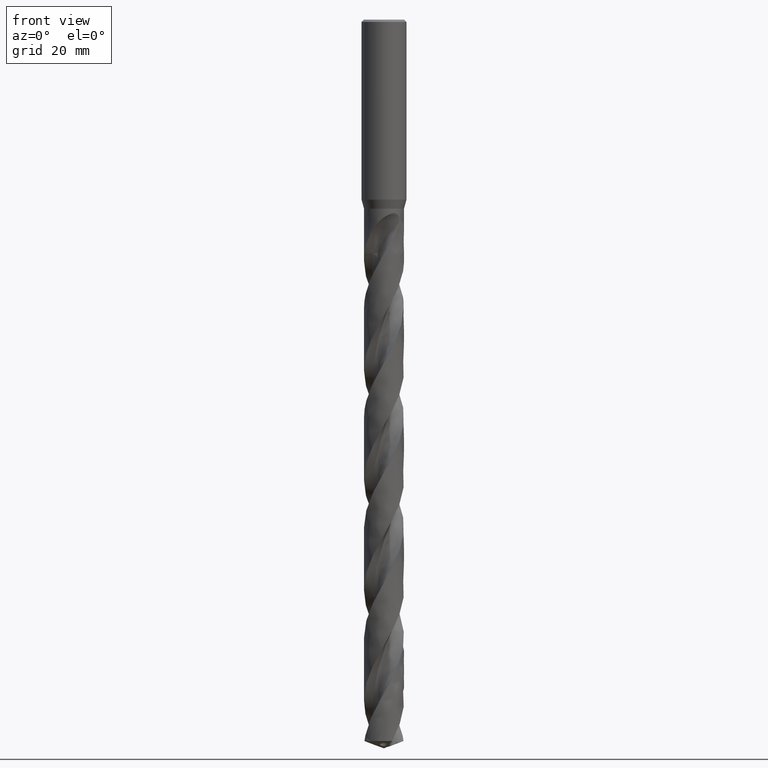
[diagram: clean part render]
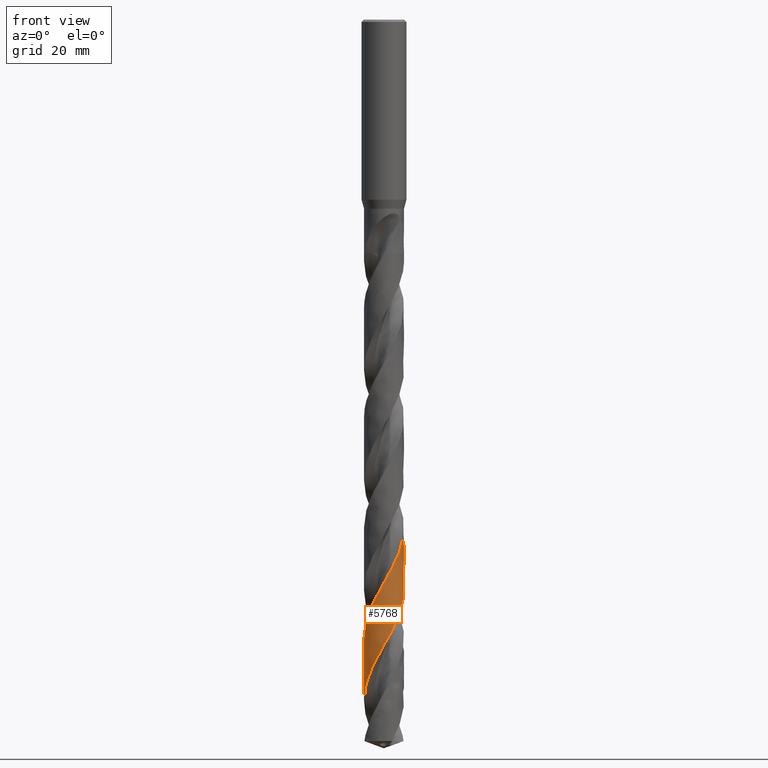
[diagram: same view with one face highlighted and labeled with its STEP entity id]
A machine part, front view. The second image highlights one B-rep face of the part: STEP entity #5768.
In plain terms, the highlighted face is a freeform B-spline surface patch.
Its self-contained STEP definition (entity closure, byte-faithful):
#1411 = VERTEX_POINT('', #1412);
#1412 = CARTESIAN_POINT('', (-4.45, 5.69042019987635E-15, -88.4816143044385));
#1572 = EDGE_CURVE('', #1411, #1573, #1575, .T.);
#1573 = VERTEX_POINT('', #1574);
#1574 = CARTESIAN_POINT('', (-4.45, 6.53931339208371E-15, -102.345092211675));
#1575 = LINE('', #1576, #1577);
#1576 = CARTESIAN_POINT('', (-4.45, 5.69042019987635E-15, -88.4816143044385));
#1577 = VECTOR('', #1578, 13.8634779072364);
#1578 = DIRECTION('', (0., 8.48893192207358E-16, -13.8634779072364));
#5116 = EDGE_CURVE('', #5117, #1573, #5119, .T.);
#5117 = VERTEX_POINT('', #5118);
#5118 = CARTESIAN_POINT('', (-4.45, 9.54006990221498E-15, -151.351165019288));
#5119 = B_SPLINE_CURVE_WITH_KNOTS('', 3, (#5120, #5121, #5122, #5123, #5124, #5125, #5126, #5127, #5128, #5129, #5130, #5131, #5132, #5133, #5134, #5135, #5136, #5137, #5138, #5139, #5140, #5141, #5142, #5143, #5144, #5145, #5146, #5147, #5148, #5149, #5150, #5151, #5152, #5153, #5154, #5155, #5156, #5157, #5158, #5159, #5160, #5161, #5162, #5163, #5164, #5165, #5166, #5167, #5168, #5169, #5170, #5171, #5172, #5173, #5174, #5175, #5176, #5177, #5178, #5179, #5180, #5181, #5182, #5183, #5184, #5185, #5186, #5187, #5188, #5189, #5190, #5191, #5192, #5193, #5194, #5195, #5196, #5197, #5198, #5199, #5200, #5201, #5202, #5203, #5204, #5205, #5206, #5207, #5208, #5209, #5210, #5211, #5212, #5213, #5214, #5215, #5216, #5217, #5218, #5219, #5220, #5221, #5222, #5223, #5224, #5225, #5226, #5227, #5228, #5229, #5230, #5231, #5232, #5233, #5234, #5235, #5236, #5237, #5238, #5239, #5240, #5241, #5242, #5243, #5244, #5245, #5246, #5247, #5248, #5249, #5250, #5251, #5252, #5253, #5254, #5255, #5256, #5257, #5258, #5259, #5260, #5261, #5262, #5263, #5264, #5265, #5266, #5267, #5268, #5269, #5270, #5271, #5272, #5273, #5274, #5275, #5276, #5277, #5278, #5279, #5280, #5281, #5282, #5283, #5284, #5285, #5286, #5287, #5288, #5289, #5290, #5291, #5292, #5293, #5294, #5295, #5296, #5297, #5298, #5299, #5300, #5301, #5302, #5303, #5304, #5305, #5306, #5307, #5308, #5309, #5310, #5311, #5312, #5313, #5314, #5315, #5316, #5317, #5318, #5319, #5320, #5321, #5322, #5323, #5324, #5325, #5326, #5327, #5328, #5329, #5330, #5331, #5332, #5333, #5334, #5335, #5336, #5337, #5338, #5339, #5340, #5341, #5342, #5343, #5344, #5345, #5346, #5347, #5348, #5349, #5350, #5351, #5352, #5353, #5354, #5355, #5356, #5357, #5358, #5359, #5360, #5361, #5362, #5363, #5364, #5365, #5366, #5367, #5368, #5369, #5370, #5371, #5372, #5373, #5374, #5375, #5376, #5377, #5378, #5379, #5380, #5381, #5382, #5383, #5384, #5385, #5386, #5387), .UNSPECIFIED., .F., .U., (4, 3, 3, 3, 3, 3, 3, 3, 3, 3, 3, 3, 3, 3, 3, 3, 3, 3, 3, 3, 3, 3, 3, 3, 3, 3, 3, 3, 3, 3, 3, 3, 3, 3, 3, 3, 3, 3, 3, 3, 3, 3, 3, 3, 3, 3, 3, 3, 3, 3, 3, 3, 3, 3, 3, 3, 3, 3, 3, 3, 3, 3, 3, 3, 3, 3, 3, 3, 3, 3, 3, 3, 3, 3, 3, 3, 3, 3, 3, 3, 3, 3, 3, 3, 3, 3, 3, 3, 3, 4), (0., 1.0001758650198, 1.99990602068301, 2.99921047164784, 3.66488423473307, 4.33044033311724, 4.99588058216347, 5.66120697438947, 6.32642073808869, 6.9915224120593, 7.65651292259589, 8.32139277899443, 8.98616164958446, 9.65081921177333, 10.3153652227679, 10.9797986680247, 11.6441179594377, 12.3083218784174, 12.9724086319969, 13.6363755331495, 14.0792142018382, 14.1667811579948, 15.1669450838889, 15.8329821929557, 16.4988929982433, 17.1646806407855, 17.8303481871134, 18.4958979016419, 19.1613314066931, 19.8266505835613, 20.4918568208398, 21.1569507119512, 21.8219329016632, 22.4868039734174, 23.1515637920836, 23.8162117673217, 24.4807475921783, 25.1451704139463, 25.8094786207991, 26.4736707400156, 27.1377450570706, 27.8016990410117, 28.0970419279581, 28.2283618762321, 28.2867524375815, 28.9529876526202, 29.619090366783, 30.2850645245678, 30.9509138330068, 31.6166411961645, 32.2822488889948, 32.9477393056637, 33.6131143296647, 34.2783750934024, 34.9435227320611, 35.6085582423516, 36.2734819535534, 36.9382937848347, 37.6029938316923, 38.2675816845759, 38.9320562571594, 39.5964165555141, 40.2606613361282, 40.9247886307735, 41.5887961300579, 42.2526815326236, 42.3110577901205, 42.3694410865438, 43.03568263834, 43.701791114521, 44.3677704618946, 45.0336243733474, 45.6993558166308, 46.3649671217279, 47.0304606345777, 47.6958382593048, 48.3611012041034, 49.0262505712747, 49.6912873336117, 50.3562118745197, 51.0210241379987, 51.6857241583959, 52.3503115433681, 53.0147852655961, 53.6791442728578, 54.3433872968076, 55.0075124186415, 55.6715173205421, 56.3353996340652, 56.4179484036911), .UNSPECIFIED.);
#5120 = CARTESIAN_POINT('', (-4.45, 9.73410482164021E-15, -151.351165019288));
#5121 = CARTESIAN_POINT('', (-4.45, -0.164892842870799, -151.061405556918));
#5122 = CARTESIAN_POINT('', (-4.44082083138796, -0.329854180480097, -150.771540395359));
#5123 = CARTESIAN_POINT('', (-4.42252422082763, -0.493740332761066, -150.481787468202));
#5124 = CARTESIAN_POINT('', (-4.4042357638039, -0.657553452294455, -150.192163663928));
#5125 = CARTESIAN_POINT('', (-4.37682409167601, -0.820416891737101, -149.902434276965));
#5126 = CARTESIAN_POINT('', (-4.34047719524564, -0.981202179753531, -149.612817032881));
#5127 = CARTESIAN_POINT('', (-4.30414577603629, -1.14191900224238, -149.323323113497));
#5128 = CARTESIAN_POINT('', (-4.25885919293747, -1.30068137937725, -149.033723638544));
#5129 = CARTESIAN_POINT('', (-4.20492899353757, -1.45639011233501, -148.744236294285));
#5130 = CARTESIAN_POINT('', (-4.16900408722518, -1.56011347523322, -148.551398036001));
#5131 = CARTESIAN_POINT('', (-4.12923166820765, -1.6625270201926, -148.358529291594));
#5132 = CARTESIAN_POINT('', (-4.08573378508768, -1.76331490023565, -148.165693957273));
#5133 = CARTESIAN_POINT('', (-4.04224359066704, -1.86408496498172, -147.972892708586));
#5134 = CARTESIAN_POINT('', (-3.99501458783162, -1.96326402499371, -147.780060538677));
#5135 = CARTESIAN_POINT('', (-3.9441909721067, -2.06054788237303, -147.587262365363));
#5136 = CARTESIAN_POINT('', (-3.8933762029422, -2.15781480613774, -147.394497751265));
#5137 = CARTESIAN_POINT('', (-3.83895158641131, -2.25321875971477, -147.201701984929));
#5138 = CARTESIAN_POINT('', (-3.7810832480169, -2.34646744523889, -147.008940137739));
#5139 = CARTESIAN_POINT('', (-3.72322481089464, -2.4397001759138, -146.8162112721));
#5140 = CARTESIAN_POINT('', (-3.66190443104252, -2.53080954403471, -146.623451828006));
#5141 = CARTESIAN_POINT('', (-3.59731041168429, -2.61951480278081, -146.430725736883));
#5142 = CARTESIAN_POINT('', (-3.53272732700311, -2.70820504522404, -146.238032271033));
#5143 = CARTESIAN_POINT('', (-3.46484959377854, -2.7945223962513, -146.045308192441));
#5144 = CARTESIAN_POINT('', (-3.39388516683803, -2.87820143046256, -145.852617831875));
#5145 = CARTESIAN_POINT('', (-3.32293269753248, -2.96186636460441, -145.659959939984));
#5146 = CARTESIAN_POINT('', (-3.24887137332084, -3.04292129036274, -145.467270871872));
#5147 = CARTESIAN_POINT('', (-3.17192706635946, -3.12111817874559, -145.274615849392));
#5148 = CARTESIAN_POINT('', (-3.09499561967754, -3.19930199749566, -145.081993026792));
#5149 = CARTESIAN_POINT('', (-3.0151569174595, -3.27465432799457, -144.889339396715));
#5150 = CARTESIAN_POINT('', (-2.9326555806266, -3.34694356770765, -144.69671929384));
#5151 = CARTESIAN_POINT('', (-2.85016797198105, -3.41922077852199, -144.504131242867));
#5152 = CARTESIAN_POINT('', (-2.76499043717336, -3.48846058122713, -144.311512749001));
#5153 = CARTESIAN_POINT('', (-2.67738454221484, -3.55444960761986, -144.118927667219));
#5154 = CARTESIAN_POINT('', (-2.58979327096763, -3.62042761872107, -143.926374732917));
#5155 = CARTESIAN_POINT('', (-2.49974515264558, -3.68317806539419, -143.733790850456));
#5156 = CARTESIAN_POINT('', (-2.40751514626182, -3.74250862664602, -143.541240930487));
#5157 = CARTESIAN_POINT('', (-2.31530058280117, -3.80182925363316, -143.348723250932));
#5158 = CARTESIAN_POINT('', (-2.22087493944769, -3.8577503835105, -143.156174552341));
#5159 = CARTESIAN_POINT('', (-2.12452671962623, -3.91010053804172, -142.96365961448));
#5160 = CARTESIAN_POINT('', (-2.02819467017519, -3.96244190651139, -142.771176986899));
#5161 = CARTESIAN_POINT('', (-1.92990827962041, -4.01123105700204, -142.578663897302));
#5162 = CARTESIAN_POINT('', (-1.82996944286759, -4.05631752186276, -142.386184069475));
#5163 = CARTESIAN_POINT('', (-1.73004753449701, -4.10139634964328, -142.19373684531));
#5164 = CARTESIAN_POINT('', (-1.62843964356374, -4.14278915794857, -142.001259004652));
#5165 = CARTESIAN_POINT('', (-1.52545679941362, -4.18036859058178, -141.808814876062));
#5166 = CARTESIAN_POINT('', (-1.42249164836367, -4.21794156683217, -141.616403810583));
#5167 = CARTESIAN_POINT('', (-1.31811845843253, -4.25171475604977, -141.423961647923));
#5168 = CARTESIAN_POINT('', (-1.2126555244362, -4.28158458739919, -141.231553405579));
#5169 = CARTESIAN_POINT('', (-1.10721090620382, -4.31144923125042, -141.039178578804));
#5170 = CARTESIAN_POINT('', (-1.00064217731966, -4.33742167017659, -140.846773099878));
#5171 = CARTESIAN_POINT('', (-0.893275944414921, -4.35942176063864, -140.654400995625));
#5172 = CARTESIAN_POINT('', (-0.785928650886001, -4.38141797029039, -140.462062825762));
#5173 = CARTESIAN_POINT('', (-0.677747474156408, -4.39945073787057, -140.269694239624));
#5174 = CARTESIAN_POINT('', (-0.569064184377701, -4.41346416707541, -140.077359082728));
#5175 = CARTESIAN_POINT('', (-0.460400509439933, -4.42747506717771, -139.885058637917));
#5176 = CARTESIAN_POINT('', (-0.351198891718741, -4.43747276854318, -139.692727231438));
#5177 = CARTESIAN_POINT('', (-0.241792357733118, -4.44342620685234, -139.500429733948));
#5178 = CARTESIAN_POINT('', (-0.168822690462158, -4.44739690582901, -139.372175196512));
#5179 = CARTESIAN_POINT('', (-0.0957486207120782, -4.44956996038297, -139.243911775192));
#5180 = CARTESIAN_POINT('', (-0.0226699500377496, -4.44994225505963, -139.115658375805));
#5181 = CARTESIAN_POINT('', (-0.00821936745906058, -4.45001587264079, -139.09029753766));
#5182 = CARTESIAN_POINT('', (0.00623165715873699, -4.45001910037915, -139.064936649373));
#5183 = CARTESIAN_POINT('', (0.0206823588499127, -4.44995193682272, -139.039575861185));
#5184 = CARTESIAN_POINT('', (0.185734008121838, -4.44918481450602, -138.749912424298));
#5185 = CARTESIAN_POINT('', (0.350811542510348, -4.43922039267221, -138.460142804947));
#5186 = CARTESIAN_POINT('', (0.514768353551297, -4.4201259645155, -138.170485923448));
#5187 = CARTESIAN_POINT('', (0.623951775998662, -4.40741045118861, -137.977595311239));
#5188 = CARTESIAN_POINT('', (0.732685141357909, -4.39064418163925, -137.78467401318));
#5189 = CARTESIAN_POINT('', (0.84063247814679, -4.36987837779094, -137.591786361513));
#5190 = CARTESIAN_POINT('', (0.9485593443697, -4.3491165118606, -137.398935288047));
#5191 = CARTESIAN_POINT('', (1.05573686582128, -4.32434967349328, -137.206053067571));
#5192 = CARTESIAN_POINT('', (1.16183564548822, -4.29565337671383, -137.013205014506));
#5193 = CARTESIAN_POINT('', (1.26791480178083, -4.26696238742401, -136.820392629425));
#5194 = CARTESIAN_POINT('', (1.37295027693605, -4.23433401627336, -136.627549002733));
#5195 = CARTESIAN_POINT('', (1.47661923559592, -4.1978679866175, -136.43473937694));
#5196 = CARTESIAN_POINT('', (1.58026949422493, -4.1614085347829, -136.241964530565));
#5197 = CARTESIAN_POINT('', (1.6825886870139, -4.12110046685803, -136.049158971006));
#5198 = CARTESIAN_POINT('', (1.78326074794299, -4.07706770913186, -135.85638692549));
#5199 = CARTESIAN_POINT('', (1.88391498861007, -4.03304274577558, -135.663649003129));
#5200 = CARTESIAN_POINT('', (1.98295720772899, -3.98527933476575, -135.470880254421));
#5201 = CARTESIAN_POINT('', (2.0800823179119, -3.93392393809415, -135.278145419782));
#5202 = CARTESIAN_POINT('', (2.1771904693943, -3.88257750842182, -135.085444237947));
#5203 = CARTESIAN_POINT('', (2.27241410301772, -3.82762350405206, -134.892711757306));
#5204 = CARTESIAN_POINT('', (2.3654610374627, -3.76922990546423, -134.700013417824));
#5205 = CARTESIAN_POINT('', (2.45849198550654, -3.71084633948516, -134.507348185858));
#5206 = CARTESIAN_POINT('', (2.54937774092065, -3.64900501308716, -134.314652050366));
#5207 = CARTESIAN_POINT('', (2.63783819461798, -3.58389587725627, -134.121989552091));
#5208 = CARTESIAN_POINT('', (2.72628363193265, -3.51879779386359, -133.929359758755));
#5209 = CARTESIAN_POINT('', (2.81233489021986, -3.45041069652976, -133.736699322209));
#5210 = CARTESIAN_POINT('', (2.89572641747841, -3.3789448819295, -133.544072523324));
#5211 = CARTESIAN_POINT('', (2.9791038608064, -3.30749113713542, -133.35147825703));
#5212 = CARTESIAN_POINT('', (3.05985036830031, -3.23293586412443, -133.158852847663));
#5213 = CARTESIAN_POINT('', (3.13771804322084, -3.15550716704088, -132.966261546767));
#5214 = CARTESIAN_POINT('', (3.21557264039644, -3.07809147397666, -132.773702591256));
#5215 = CARTESIAN_POINT('', (3.29057481709269, -2.99777800321842, -132.581112530672));
#5216 = CARTESIAN_POINT('', (3.36249400656139, -2.91481286806524, -132.388556316239));
#5217 = CARTESIAN_POINT('', (3.43440117839476, -2.83186159631551, -132.196032277786));
#5218 = CARTESIAN_POINT('', (3.5032507134464, -2.74623143279252, -132.00347762761));
#5219 = CARTESIAN_POINT('', (3.56882997303963, -2.65818596481396, -131.81095641707));
#5220 = CARTESIAN_POINT('', (3.63439825923447, -2.57015522951159, -131.618467421164));
#5221 = CARTESIAN_POINT('', (3.6967197668282, -2.47967997069496, -131.42594759977));
#5222 = CARTESIAN_POINT('', (3.75560264445402, -2.38703765721657, -131.233461671628));
#5223 = CARTESIAN_POINT('', (3.81447561524928, -2.29441093047134, -131.041008128544));
#5224 = CARTESIAN_POINT('', (3.86993041862501, -2.19958754590245, -130.848523380827));
#5225 = CARTESIAN_POINT('', (3.92179680586467, -2.10285753523856, -130.656072643352));
#5226 = CARTESIAN_POINT('', (3.97365444135102, -2.00614384645936, -130.463654379343));
#5227 = CARTESIAN_POINT('', (4.02194207434074, -1.90749200716439, -130.271205353799));
#5228 = CARTESIAN_POINT('', (4.0665107106623, -1.8072052014281, -130.078789830695));
#5229 = CARTESIAN_POINT('', (4.11107176816963, -1.70693544927775, -129.886407027495));
#5230 = CARTESIAN_POINT('', (4.15193035314744, -1.60499695216733, -129.69399360659));
#5231 = CARTESIAN_POINT('', (4.18896029389703, -1.50170291874061, -129.501613825542));
#5232 = CARTESIAN_POINT('', (4.22598384687159, -1.39842670384221, -129.309267230579));
#5233 = CARTESIAN_POINT('', (4.25919239518298, -1.29376117598989, -129.116889510688));
#5234 = CARTESIAN_POINT('', (4.28848380944967, -1.18802635328011, -128.924545826234));
#5235 = CARTESIAN_POINT('', (4.31777010505155, -1.08231000769514, -128.732235753775));
#5236 = CARTESIAN_POINT('', (4.34315021084718, -0.975490096280754, -128.539894724548));
#5237 = CARTESIAN_POINT('', (4.36454578786488, -0.867894040555101, -128.347587379708));
#5238 = CARTESIAN_POINT('', (4.3859375701293, -0.760317068235535, -128.155314142801));
#5239 = CARTESIAN_POINT('', (4.40335347442845, -0.651927676501255, -127.963010378576));
#5240 = CARTESIAN_POINT('', (4.41673936852642, -0.543059251379647, -127.770740009556));
#5241 = CARTESIAN_POINT('', (4.43012283704298, -0.434210553683523, -127.578504480751));
#5242 = CARTESIAN_POINT('', (4.43948232603439, -0.324846114541164, -127.386238110861));
#5243 = CARTESIAN_POINT('', (4.44478858258913, -0.21530085017423, -127.194005612436));
#5244 = CARTESIAN_POINT('', (4.447148934613, -0.166572451200868, -127.108495919863));
#5245 = CARTESIAN_POINT('', (4.44870796230993, -0.117803131823586, -127.022983663925));
#5246 = CARTESIAN_POINT('', (4.44946467331966, -0.0690226113702236, -126.937474460531));
#5247 = CARTESIAN_POINT('', (4.44980113393899, -0.0473330576147683, -126.899454028475));
#5248 = CARTESIAN_POINT('', (4.44997900069624, -0.0256408160763818, -126.861433395403));
#5249 = CARTESIAN_POINT('', (4.44999824826428, -0.00394847373994032, -126.823413070376));
#5250 = CARTESIAN_POINT('', (4.45000680657029, 0.00569688526801179, -126.806507580006));
#5251 = CARTESIAN_POINT('', (4.4499840053087, 0.0153423047447367, -126.789602079174));
#5252 = CARTESIAN_POINT('', (4.44992984461682, 0.0249875566733154, -126.772696612302));
#5253 = CARTESIAN_POINT('', (4.44931187213349, 0.135039701133548, -126.579805550864));
#5254 = CARTESIAN_POINT('', (4.44460838155137, 0.245090468995923, -126.386883619837));
#5255 = CARTESIAN_POINT('', (4.43583335335869, 0.354799184371628, -126.193995531496));
#5256 = CARTESIAN_POINT('', (4.42706007034383, 0.464486080875311, -126.001145804742));
#5257 = CARTESIAN_POINT('', (4.41421395147592, 0.573868039513852, -125.808264767506));
#5258 = CARTESIAN_POINT('', (4.39733398418238, 0.682608109792704, -125.615418023462));
#5259 = CARTESIAN_POINT('', (4.38045727468589, 0.79132719347403, -125.422608498421));
#5260 = CARTESIAN_POINT('', (4.3595427132942, 0.899440414220279, -125.22976764234));
#5261 = CARTESIAN_POINT('', (4.33465421835789, 1.00661452764811, -125.036960879862));
#5262 = CARTESIAN_POINT('', (4.30977038923672, 1.11376854927841, -124.844190262628));
#5263 = CARTESIAN_POINT('', (4.28090563699944, 1.22002016510907, -124.65138878607));
#5264 = CARTESIAN_POINT('', (4.2481487473127, 1.32504046002587, -124.458620987915));
#5265 = CARTESIAN_POINT('', (4.21539785680337, 1.43004152126734, -124.265888493728));
#5266 = CARTESIAN_POINT('', (4.17874503864821, 1.53384775196141, -124.073124996057));
#5267 = CARTESIAN_POINT('', (4.13830279015999, 1.63613875235388, -123.880395564516));
#5268 = CARTESIAN_POINT('', (4.09786781152033, 1.73841136504263, -123.687700777779));
#5269 = CARTESIAN_POINT('', (4.05363143337523, 1.8392030797011, -123.49497459507));
#5270 = CARTESIAN_POINT('', (4.00572916123693, 1.93820377845471, -123.302282639842));
#5271 = CARTESIAN_POINT('', (3.9578353291973, 2.03718703386735, -123.109624635803));
#5272 = CARTESIAN_POINT('', (3.90626089709698, 2.13441288576822, -122.916935617641));
#5273 = CARTESIAN_POINT('', (3.85116459944206, 2.22958095345388, -122.724280362333));
#5274 = CARTESIAN_POINT('', (3.79607785520611, 2.32473251947859, -122.531658512472));
#5275 = CARTESIAN_POINT('', (3.73745154451643, 2.41785968925798, -122.339005841847));
#5276 = CARTESIAN_POINT('', (3.67546621306619, 2.5086745736761, -122.146386989175));
#5277 = CARTESIAN_POINT('', (3.61349152592937, 2.59947386308052, -121.95380121361));
#5278 = CARTESIAN_POINT('', (3.54813825495346, 2.68799208097877, -121.761184156783));
#5279 = CARTESIAN_POINT('', (3.47960678703468, 2.77395685035335, -121.568601317248));
#5280 = CARTESIAN_POINT('', (3.41108697263304, 2.85990700174374, -121.376051225697));
#5281 = CARTESIAN_POINT('', (3.33936746042847, 2.94333287552698, -121.183469939731));
#5282 = CARTESIAN_POINT('', (3.26466859048652, 3.02397734685477, -120.990922596671));
#5283 = CARTESIAN_POINT('', (3.18998231303066, 3.10460822340684, -120.798407712599));
#5284 = CARTESIAN_POINT('', (3.11229225064946, 3.18248604408275, -120.605862062829));
#5285 = CARTESIAN_POINT('', (3.03183798884345, 3.25736986070139, -120.413350025156));
#5286 = CARTESIAN_POINT('', (2.95139725219966, 3.33224108860508, -120.220870350673));
#5287 = CARTESIAN_POINT('', (2.86816580297549, 3.40414490130734, -120.02835967996));
#5288 = CARTESIAN_POINT('', (2.78239939588098, 3.4728595712757, -119.835883043679));
#5289 = CARTESIAN_POINT('', (2.69664741982366, 3.54156267932847, -119.643438793476));
#5290 = CARTESIAN_POINT('', (2.60833309292936, 3.60710036911538, -119.450963248834));
#5291 = CARTESIAN_POINT('', (2.5177272746825, 3.66927095896717, -119.258521799693));
#5292 = CARTESIAN_POINT('', (2.42713669130165, 3.73143109517896, -119.066112708515));
#5293 = CARTESIAN_POINT('', (2.3342250425827, 3.79024604059293, -118.873672736513));
#5294 = CARTESIAN_POINT('', (2.23927852962748, 3.84553398980551, -118.681266403331));
#5295 = CARTESIAN_POINT('', (2.14434804258749, 3.90081260702727, -118.488892546198));
#5296 = CARTESIAN_POINT('', (2.04735081638414, 3.95258438464541, -118.296487896954));
#5297 = CARTESIAN_POINT('', (1.9485854328578, 4.00068929196638, -118.104117055326));
#5298 = CARTESIAN_POINT('', (1.84983688408435, 4.04878599971176, -117.911779003685));
#5299 = CARTESIAN_POINT('', (1.74928793922697, 4.09323312144673, -117.719409708248));
#5300 = CARTESIAN_POINT('', (1.64724681834733, 4.13389379634319, -117.527074546469));
#5301 = CARTESIAN_POINT('', (1.54522324617591, 4.17454747854578, -117.334772461881));
#5302 = CARTESIAN_POINT('', (1.4416743168778, 4.21142941869679, -117.142439325215));
#5303 = CARTESIAN_POINT('', (1.3369182676376, 4.24442570269017, -116.950139979708));
#5304 = CARTESIAN_POINT('', (1.23218043318559, 4.27741624935069, -116.757874070856));
#5305 = CARTESIAN_POINT('', (1.12620018196419, 4.30653371635597, -116.565577468522));
#5306 = CARTESIAN_POINT('', (1.01930410015714, 4.33168779477503, -116.373314445882));
#5307 = CARTESIAN_POINT('', (0.91242692522012, 4.35683742415458, -116.18108542909));
#5308 = CARTESIAN_POINT('', (0.804598033235728, 4.37803362158027, -115.988825404496));
#5309 = CARTESIAN_POINT('', (0.696148352330071, 4.39521074256381, -115.796599385177));
#5310 = CARTESIAN_POINT('', (0.587718233590842, 4.41238476513622, -115.604408039611));
#5311 = CARTESIAN_POINT('', (0.47863187829903, 4.42554681692386, -115.412185519596));
#5312 = CARTESIAN_POINT('', (0.369223804521749, 4.43465599366792, -115.219996947347));
#5313 = CARTESIAN_POINT('', (0.259835848539538, 4.44376349543002, -115.027843714449));
#5314 = CARTESIAN_POINT('', (0.150089505207221, 4.44882263962889, -114.835659734477));
#5315 = CARTESIAN_POINT('', (0.0403227111337938, 4.4498173084934, -114.643509277886));
#5316 = CARTESIAN_POINT('', (0.0306707823360331, 4.44990477094631, -114.626613252625));
#5317 = CARTESIAN_POINT('', (0.0210185374474292, 4.44996083007664, -114.609717216186));
#5318 = CARTESIAN_POINT('', (0.0113662048303722, 4.4499854841772, -114.592821213226));
#5319 = CARTESIAN_POINT('', (0.00171270834872755, 4.45001014125052, -114.575923172969));
#5320 = CARTESIAN_POINT('', (-0.00794090102976519, 4.45000338578349, -114.559025122175));
#5321 = CARTESIAN_POINT('', (-0.0175943945322286, 4.4499652175361, -114.542127105333));
#5322 = CARTESIAN_POINT('', (-0.127755329000653, 4.44952966021187, -114.34929522271));
#5323 = CARTESIAN_POINT('', (-0.237921671523049, 4.44500056683641, -114.156432319984));
#5324 = CARTESIAN_POINT('', (-0.3477517372995, 4.43639140847664, -113.963603392712));
#5325 = CARTESIAN_POINT('', (-0.457559865531631, 4.42778396971699, -113.770812981243));
#5326 = CARTESIAN_POINT('', (-0.567069034990066, 4.41509521624964, -113.57799116918));
#5327 = CARTESIAN_POINT('', (-0.675941056524721, 4.39836375122663, -113.385203729788));
#5328 = CARTESIAN_POINT('', (-0.78479197261665, 4.38163552969053, -113.192453663306));
#5329 = CARTESIAN_POINT('', (-0.893042047655045, 4.36086061768145, -112.999672165141));
#5330 = CARTESIAN_POINT('', (-1.00035685819348, 4.33610264595585, -112.806924875319));
#5331 = CARTESIAN_POINT('', (-1.10765145619509, 4.31134933734631, -112.614213889076));
#5332 = CARTESIAN_POINT('', (-1.21404762150251, 4.28260601931485, -112.421471889854));
#5333 = CARTESIAN_POINT('', (-1.3192154092481, 4.24996125911783, -112.228763723658));
#5334 = CARTESIAN_POINT('', (-1.42436385385217, 4.21732250315681, -112.036091001597));
#5335 = CARTESIAN_POINT('', (-1.52832052577877, 4.18077253926381, -111.843387153902));
#5336 = CARTESIAN_POINT('', (-1.63076384727452, 4.14042380372136, -111.650717470141));
#5337 = CARTESIAN_POINT('', (-1.73318868180387, 4.1000823495293, -111.458082555635));
#5338 = CARTESIAN_POINT('', (-1.83413477402881, 4.05593010347938, -111.265416164395));
#5339 = CARTESIAN_POINT('', (-1.93329075413, 4.00810265088053, -111.072784089368));
#5340 = CARTESIAN_POINT('', (-2.03242918674416, 3.96028366223517, -110.880186104153));
#5341 = CARTESIAN_POINT('', (-2.1298113236762, 3.90877472788848, -110.687556971368));
#5342 = CARTESIAN_POINT('', (-2.22513572416082, 3.85373468327328, -110.494961746697));
#5343 = CARTESIAN_POINT('', (-2.32044352498578, 3.79870422325554, -110.302400060293));
#5344 = CARTESIAN_POINT('', (-2.41372707102905, 3.74012495805538, -110.109807408764));
#5345 = CARTESIAN_POINT('', (-2.50469742779691, 3.6781776459529, -109.917248700285));
#5346 = CARTESIAN_POINT('', (-2.59565210553739, 3.61624101066468, -109.724723179904));
#5347 = CARTESIAN_POINT('', (-2.68432501283552, 3.5509166779934, -109.532166293604));
#5348 = CARTESIAN_POINT('', (-2.77044261072897, 3.48240545322587, -109.339643703747));
#5349 = CARTESIAN_POINT('', (-2.85654550611641, 3.41390592510012, -109.147153982486));
#5350 = CARTESIAN_POINT('', (-2.94012249852745, 3.34219787736302, -108.954632961463));
#5351 = CARTESIAN_POINT('', (-3.02091543222256, 3.26750209661136, -108.762146003615));
#5352 = CARTESIAN_POINT('', (-3.10169468827567, 3.19281896129911, -108.569691632376));
#5353 = CARTESIAN_POINT('', (-3.17971834246263, 3.11512362782844, -108.377206342947));
#5354 = CARTESIAN_POINT('', (-3.25474456961296, 3.03465612328233, -108.184754816922));
#5355 = CARTESIAN_POINT('', (-3.32975813648512, 2.95420219720113, -107.992335766071));
#5356 = CARTESIAN_POINT('', (-3.40180097221242, 2.87094952515518, -107.799885604472));
#5357 = CARTESIAN_POINT('', (-3.47065041997014, 2.78515451319333, -107.607469570751));
#5358 = CARTESIAN_POINT('', (-3.53948824198912, 2.69937398835412, -107.415086027901));
#5359 = CARTESIAN_POINT('', (-3.60515659981587, 2.61102353816958, -107.222671107081));
#5360 = CARTESIAN_POINT('', (-3.66745291724231, 2.52037479351998, -107.030290376056));
#5361 = CARTESIAN_POINT('', (-3.72973871691655, 2.42974135348346, -106.837942125487));
#5362 = CARTESIAN_POINT('', (-3.78867451893345, 2.33677992031006, -106.645562856971));
#5363 = CARTESIAN_POINT('', (-3.84407780484132, 2.24177738197315, -106.453217375062));
#5364 = CARTESIAN_POINT('', (-3.89947170249515, 2.14679094210314, -106.260904486675));
#5365 = CARTESIAN_POINT('', (-3.95135330934334, 2.04973146641226, -106.068560668828));
#5366 = CARTESIAN_POINT('', (-3.99956193688551, 1.95089833487464, -105.87625077559));
#5367 = CARTESIAN_POINT('', (-4.04776231942482, 1.85208210652417, -105.68397377264));
#5368 = CARTESIAN_POINT('', (-4.09230713281421, 1.75145978138566, -105.491665445298));
#5369 = CARTESIAN_POINT('', (-4.1330588724763, 1.64934058236769, -105.299391332032));
#5370 = CARTESIAN_POINT('', (-4.17380357674437, 1.54723901324251, -105.107150413034));
#5371 = CARTESIAN_POINT('', (-4.21077003135625, 1.44360717073142, -104.914878330643));
#5372 = CARTESIAN_POINT('', (-4.24384382017285, 1.33876421747101, -104.72264016605));
#5373 = CARTESIAN_POINT('', (-4.27691183499148, 1.23393956761704, -104.530435562256));
#5374 = CARTESIAN_POINT('', (-4.30609981549124, 1.1278684266065, -104.3382001148));
#5375 = CARTESIAN_POINT('', (-4.33131707506742, 1.02087824701553, -104.145998393082));
#5376 = CARTESIAN_POINT('', (-4.35652985861877, 0.913907058017022, -103.953830786875));
#5377 = CARTESIAN_POINT('', (-4.37778192652366, 0.80598081193202, -103.761632067055));
#5378 = CARTESIAN_POINT('', (-4.39500731420021, 0.697431507839152, -103.569467441783));
#5379 = CARTESIAN_POINT('', (-4.41222958373699, 0.588901853341912, -103.377337602152));
#5380 = CARTESIAN_POINT('', (-4.42543233930643, 0.479713428470725, -103.185176500014));
#5381 = CARTESIAN_POINT('', (-4.43457445392463, 0.370201853857329, -102.993049446959));
#5382 = CARTESIAN_POINT('', (-4.44371488072848, 0.260710497236608, -102.80095786434));
#5383 = CARTESIAN_POINT('', (-4.44879921844265, 0.150859167938113, -102.608835393993));
#5384 = CARTESIAN_POINT('', (-4.44981124174134, 0.0409867402082842, -102.416746596497));
#5385 = CARTESIAN_POINT('', (-4.44993707922253, 0.027324930667415, -102.392861800096));
#5386 = CARTESIAN_POINT('', (-4.45, 0.013662467838701, -102.368976963016));
#5387 = CARTESIAN_POINT('', (-4.45, 7.07528873605192E-15, -102.345092211675));
#5768 = ADVANCED_FACE('', (#5769), #6049, .T.);
#5769 = FACE_OUTER_BOUND('', #5770, .T.);
#5770 = EDGE_LOOP('', (#5771, #5772, #5773, #6043));
#5771 = ORIENTED_EDGE('', *, *, #5116, .T.);
#5772 = ORIENTED_EDGE('', *, *, #1572, .F.);
#5773 = ORIENTED_EDGE('', *, *, #5774, .F.);
#5774 = EDGE_CURVE('', #5775, #1411, #5777, .T.);
#5775 = VERTEX_POINT('', #5776);
#5776 = CARTESIAN_POINT('', (-4.45, 8.68782178360748E-15, -137.432897005998));
#5777 = B_SPLINE_CURVE_WITH_KNOTS('', 3, (#5778, #5779, #5780, #5781, #5782, #5783, #5784, #5785, #5786, #5787, #5788, #5789, #5790, #5791, #5792, #5793, #5794, #5795, #5796, #5797, #5798, #5799, #5800, #5801, #5802, #5803, #5804, #5805, #5806, #5807, #5808, #5809, #5810, #5811, #5812, #5813, #5814, #5815, #5816, #5817, #5818, #5819, #5820, #5821, #5822, #5823, #5824, #5825, #5826, #5827, #5828, #5829, #5830, #5831, #5832, #5833, #5834, #5835, #5836, #5837, #5838, #5839, #5840, #5841, #5842, #5843, #5844, #5845, #5846, #5847, #5848, #5849, #5850, #5851, #5852, #5853, #5854, #5855, #5856, #5857, #5858, #5859, #5860, #5861, #5862, #5863, #5864, #5865, #5866, #5867, #5868, #5869, #5870, #5871, #5872, #5873, #5874, #5875, #5876, #5877, #5878, #5879, #5880, #5881, #5882, #5883, #5884, #5885, #5886, #5887, #5888, #5889, #5890, #5891, #5892, #5893, #5894, #5895, #5896, #5897, #5898, #5899, #5900, #5901, #5902, #5903, #5904, #5905, #5906, #5907, #5908, #5909, #5910, #5911, #5912, #5913, #5914, #5915, #5916, #5917, #5918, #5919, #5920, #5921, #5922, #5923, #5924, #5925, #5926, #5927, #5928, #5929, #5930, #5931, #5932, #5933, #5934, #5935, #5936, #5937, #5938, #5939, #5940, #5941, #5942, #5943, #5944, #5945, #5946, #5947, #5948, #5949, #5950, #5951, #5952, #5953, #5954, #5955, #5956, #5957, #5958, #5959, #5960, #5961, #5962, #5963, #5964, #5965, #5966, #5967, #5968, #5969, #5970, #5971, #5972, #5973, #5974, #5975, #5976, #5977, #5978, #5979, #5980, #5981, #5982, #5983, #5984, #5985, #5986, #5987, #5988, #5989, #5990, #5991, #5992, #5993, #5994, #5995, #5996, #5997, #5998, #5999, #6000, #6001, #6002, #6003, #6004, #6005, #6006, #6007, #6008, #6009, #6010, #6011, #6012, #6013, #6014, #6015, #6016, #6017, #6018, #6019, #6020, #6021, #6022, #6023, #6024, #6025, #6026, #6027, #6028, #6029, #6030, #6031, #6032, #6033, #6034, #6035, #6036, #6037, #6038, #6039, #6040, #6041, #6042), .UNSPECIFIED., .F., .U., (4, 3, 3, 3, 3, 3, 3, 3, 3, 3, 3, 3, 3, 3, 3, 3, 3, 3, 3, 3, 3, 3, 3, 3, 3, 3, 3, 3, 3, 3, 3, 3, 3, 3, 3, 3, 3, 3, 3, 3, 3, 3, 3, 3, 3, 3, 3, 3, 3, 3, 3, 3, 3, 3, 3, 3, 3, 3, 3, 3, 3, 3, 3, 3, 3, 3, 3, 3, 3, 3, 3, 3, 3, 3, 3, 3, 3, 3, 3, 3, 3, 3, 3, 3, 3, 3, 3, 3, 4), (0., 1.00017116680014, 1.66621221550187, 2.33212758181899, 2.99792045742938, 3.66359385349473, 4.32914997300301, 4.99459046221259, 5.65991720229434, 6.32513153009406, 6.99023401573897, 7.65522535566205, 8.32010609965661, 8.98487606967908, 9.6495347205172, 10.314081752621, 10.9785162800591, 11.6428366937265, 12.3070415769444, 12.9711292025097, 13.6350970164141, 14.0779359723679, 14.136312530092, 14.8025534737221, 15.4686622102792, 16.1346426767972, 16.8004985539047, 17.4662327333674, 18.1318474913743, 18.797345203041, 19.4627277371768, 20.1279962238871, 20.793151792453, 21.4581954252209, 22.1231274446982, 22.7879477716715, 23.4526564923754, 24.1172531907405, 24.7817367800801, 25.4461062668257, 26.1103604042213, 26.7744972220046, 27.4385144180183, 28.1024096948327, 28.2337294602516, 28.8999777794317, 29.5660929886732, 30.2320790015785, 30.8979394975641, 31.5636774609861, 32.2292952152211, 32.8947950741925, 33.5601789455561, 34.2254480484708, 34.8906034484551, 35.5556461084989, 36.2205764235574, 36.8853943162069, 37.5500997958291, 38.2146924727704, 38.8791713160353, 39.5435352386216, 40.2077829646579, 40.8719125790025, 41.5359217295592, 42.1998080301968, 42.2873651907217, 42.3457469914623, 43.0119949035278, 43.6781090534199, 44.3440933072108, 45.0099513001765, 45.6756860815191, 46.3413000127426, 47.0067953134079, 47.672173902149, 48.3374370768269, 49.0025858212603, 49.6676210499147, 50.3325432128599, 50.9973522284759, 51.6620480002068, 52.3266301429222, 52.9910976724483, 53.6554493855993, 54.3196839500552, 54.9837994873368, 55.6477935803425, 56.370575048418), .UNSPECIFIED.);
#5778 = CARTESIAN_POINT('', (-4.45, 8.18030674666701E-15, -137.432897005998));
#5779 = CARTESIAN_POINT('', (-4.45, -0.164783404959536, -137.143077094876));
#5780 = CARTESIAN_POINT('', (-4.44083300898667, -0.329639964138186, -136.853154481538));
#5781 = CARTESIAN_POINT('', (-4.42255912544688, -0.493427585291412, -136.563346214281));
#5782 = CARTESIAN_POINT('', (-4.41039005183158, -0.602498194981418, -136.370355045716));
#5783 = CARTESIAN_POINT('', (-4.39418068416647, -0.711141799873646, -136.17733463401));
#5784 = CARTESIAN_POINT('', (-4.3739799278111, -0.819023559554685, -135.98434880353));
#5785 = CARTESIAN_POINT('', (-4.35378298335176, -0.926884961876611, -135.791399389604));
#5786 = CARTESIAN_POINT('', (-4.32958952609417, -1.03402058388949, -135.598419918372));
#5787 = CARTESIAN_POINT('', (-4.30147245974607, -1.14010292432135, -135.40547577454));
#5788 = CARTESIAN_POINT('', (-4.27336056534549, -1.24616575161159, -135.2125671215));
#5789 = CARTESIAN_POINT('', (-4.24131746597416, -1.35120969940757, -135.019628499048));
#5790 = CARTESIAN_POINT('', (-4.20544037432157, -1.45491280083242, -134.826724762935));
#5791 = CARTESIAN_POINT('', (-4.16956972097546, -1.55859729226634, -134.63385564427));
#5792 = CARTESIAN_POINT('', (-4.1298542047533, -1.66097663425663, -134.440957321805));
#5793 = CARTESIAN_POINT('', (-4.0864153764782, -1.76173476178524, -134.248093270191));
#5794 = CARTESIAN_POINT('', (-4.0429842011396, -1.86247513801664, -134.05526319685));
#5795 = CARTESIAN_POINT('', (-3.99581615427626, -1.96162948833141, -133.862403544597));
#5796 = CARTESIAN_POINT('', (-3.94505484917499, -2.05889344964738, -133.669578911023));
#5797 = CARTESIAN_POINT('', (-3.89430236308191, -2.15614051282273, -133.47678777781));
#5798 = CARTESIAN_POINT('', (-3.83994157876026, -2.25152912692971, -133.283966461078));
#5799 = CARTESIAN_POINT('', (-3.78213754756087, -2.34476770093121, -133.091180337402));
#5800 = CARTESIAN_POINT('', (-3.72434339727231, -2.43799033690872, -132.898427168218));
#5801 = CARTESIAN_POINT('', (-3.66308805686571, -2.52909438490137, -132.705644524629));
#5802 = CARTESIAN_POINT('', (-3.59855910539005, -2.61779914527725, -132.51289627482));
#5803 = CARTESIAN_POINT('', (-3.53404105659763, -2.70648891827333, -132.320180591371));
#5804 = CARTESIAN_POINT('', (-3.46622819504766, -2.7928108815958, -132.127435640168));
#5805 = CARTESIAN_POINT('', (-3.39532816331377, -2.87649902892532, -131.93472531715));
#5806 = CARTESIAN_POINT('', (-3.32444005196703, -2.96017310580816, -131.742047394422));
#5807 = CARTESIAN_POINT('', (-3.25044256447349, -3.0412417870867, -131.549339378863));
#5808 = CARTESIAN_POINT('', (-3.1735606389727, -3.11945714360097, -131.356666638405));
#5809 = CARTESIAN_POINT('', (-3.09669156126197, -3.19765942949463, -131.164026095618));
#5810 = CARTESIAN_POINT('', (-3.01691422019995, -3.27303451304667, -130.971355719042));
#5811 = CARTESIAN_POINT('', (-2.93447225679094, -3.34535088953674, -130.77872006369));
#5812 = CARTESIAN_POINT('', (-2.85204400445596, -3.41765523895769, -130.586116445926));
#5813 = CARTESIAN_POINT('', (-2.76692381412083, -3.48692657054643, -130.3934836756));
#5814 = CARTESIAN_POINT('', (-2.67937321791666, -3.55295076789855, -130.20088516114));
#5815 = CARTESIAN_POINT('', (-2.59183720827916, -3.61896396513875, -130.008318734995));
#5816 = CARTESIAN_POINT('', (-2.5018417976933, -3.68175365649221, -129.815722649432));
#5817 = CARTESIAN_POINT('', (-2.4096616418407, -3.74112693875008, -129.623161604845));
#5818 = CARTESIAN_POINT('', (-2.317496922034, -3.80049027864343, -129.430632805605));
#5819 = CARTESIAN_POINT('', (-2.22311860179472, -3.85645743278611, -129.238073913217));
#5820 = CARTESIAN_POINT('', (-2.12681412503775, -3.90885682489649, -129.045550066123));
#5821 = CARTESIAN_POINT('', (-2.03052582106931, -3.96124741737142, -128.853058550313));
#5822 = CARTESIAN_POINT('', (-1.93227992983294, -4.01008882471322, -128.660537687956));
#5823 = CARTESIAN_POINT('', (-1.83237807343068, -4.05523002997492, -128.468051101425));
#5824 = CARTESIAN_POINT('', (-1.73249312993964, -4.10036359304433, -128.27559710196));
#5825 = CARTESIAN_POINT('', (-1.63091828700466, -4.14181381165221, -128.083113786225));
#5826 = CARTESIAN_POINT('', (-1.52796473746074, -4.17945256715237, -127.890665161699));
#5827 = CARTESIAN_POINT('', (-1.42502886974588, -4.21708485835824, -127.698249589396));
#5828 = CARTESIAN_POINT('', (-1.32068124246905, -4.25091931218636, -127.505803911613));
#5829 = CARTESIAN_POINT('', (-1.21523940220742, -4.28085192401262, -127.313393434404));
#5830 = CARTESIAN_POINT('', (-1.109815899096, -4.31077933032656, -127.121016418863));
#5831 = CARTESIAN_POINT('', (-1.00326435759451, -4.33681591335113, -126.928609724733));
#5832 = CARTESIAN_POINT('', (-0.895910881375098, -4.35888101381923, -126.736237576929));
#5833 = CARTESIAN_POINT('', (-0.788576357164213, -4.38094221895029, -126.543899390193));
#5834 = CARTESIAN_POINT('', (-0.680403322576037, -4.39904088425533, -126.351532071417));
#5835 = CARTESIAN_POINT('', (-0.57172420454775, -4.41312037383238, -126.159199047174));
#5836 = CARTESIAN_POINT('', (-0.463064693910316, -4.42719732325214, -125.966900722778));
#5837 = CARTESIAN_POINT('', (-0.353862679133837, -4.43726135030452, -125.774572630765));
#5838 = CARTESIAN_POINT('', (-0.244451282290262, -4.44328072156004, -125.582279602465));
#5839 = CARTESIAN_POINT('', (-0.17147842467125, -4.44729539219087, -125.454028138906));
#5840 = CARTESIAN_POINT('', (-0.0983993661880463, -4.44951224813702, -125.325768190455));
#5841 = CARTESIAN_POINT('', (-0.0253137401246824, -4.4499280010536, -125.197518777797));
#5842 = CARTESIAN_POINT('', (-0.0156793409569283, -4.44998280703624, -125.180612498121));
#5843 = CARTESIAN_POINT('', (-0.00604471643489382, -4.45000632442585, -125.163706216482));
#5844 = CARTESIAN_POINT('', (0.00358990688393535, -4.44999855197375, -125.146799977497));
#5845 = CARTESIAN_POINT('', (0.11354809526829, -4.44990984640389, -124.953852173555));
#5846 = CARTESIAN_POINT('', (0.223526695034322, -4.44574275789746, -124.760874859705));
#5847 = CARTESIAN_POINT('', (0.333185531387, -4.43750914384122, -124.56793234672));
#5848 = CARTESIAN_POINT('', (0.442822607333138, -4.42927716364135, -124.375028120731));
#5849 = CARTESIAN_POINT('', (0.552176707177738, -4.41697758188701, -124.182093638801));
#5850 = CARTESIAN_POINT('', (0.660912125427948, -4.40064712996422, -123.989194651033));
#5851 = CARTESIAN_POINT('', (0.769626604910098, -4.38431982273476, -123.796332809092));
#5852 = CARTESIAN_POINT('', (0.877757865277373, -4.363957887337, -123.603440778714));
#5853 = CARTESIAN_POINT('', (0.984973190418092, -4.33962300369025, -123.410583845782));
#5854 = CARTESIAN_POINT('', (1.09216845807239, -4.31529267253259, -123.217762991883));
#5855 = CARTESIAN_POINT('', (1.19848472247616, -4.28698251746107, -123.024912662628));
#5856 = CARTESIAN_POINT('', (1.30359267682682, -4.25477921083144, -122.83209685131));
#5857 = CARTESIAN_POINT('', (1.40868142072829, -4.22258178995984, -122.639316280697));
#5858 = CARTESIAN_POINT('', (1.51259857455185, -4.18648157160354, -122.446505900922));
#5859 = CARTESIAN_POINT('', (1.61502393469712, -4.14658868111553, -122.253730722802));
#5860 = CARTESIAN_POINT('', (1.71743092146455, -4.10670294673757, -122.060990125289));
#5861 = CARTESIAN_POINT('', (1.81837993141946, -4.06301297246498, -121.86821915264));
#5862 = CARTESIAN_POINT('', (1.9175611210454, -4.01565179604196, -121.675483553262));
#5863 = CARTESIAN_POINT('', (2.0167248699594, -3.96829894793844, -121.482781845856));
#5864 = CARTESIAN_POINT('', (2.11415434525668, -3.91726039957356, -121.290050414559));
#5865 = CARTESIAN_POINT('', (2.20954835209329, -3.86269285340703, -121.097353617169));
#5866 = CARTESIAN_POINT('', (2.30492584911179, -3.80813475123276, -120.904690169769));
#5867 = CARTESIAN_POINT('', (2.3983016854879, -3.75002993693986, -120.711997200641));
#5868 = CARTESIAN_POINT('', (2.48938714996815, -3.68855684754531, -120.519339071159));
#5869 = CARTESIAN_POINT('', (2.58045700228216, -3.62709429471767, -120.326713963529));
#5870 = CARTESIAN_POINT('', (2.66926748291025, -3.56224430037749, -120.134058573454));
#5871 = CARTESIAN_POINT('', (2.75554591574482, -3.49420473158371, -119.941438624861));
#5872 = CARTESIAN_POINT('', (2.84180970426551, -3.42617671136318, -119.748851370267));
#5873 = CARTESIAN_POINT('', (2.92557034534533, -3.35493804541132, -119.556234064964));
#5874 = CARTESIAN_POINT('', (3.00656968495104, -3.28070704719781, -119.363651694887));
#5875 = CARTESIAN_POINT('', (3.08755539357153, -3.20648854095824, -119.17110173356));
#5876 = CARTESIAN_POINT('', (3.16580849877192, -3.12925319809857, -118.978522355953));
#5877 = CARTESIAN_POINT('', (3.24108642087231, -3.04923905465562, -118.785977476588));
#5878 = CARTESIAN_POINT('', (3.31635170919023, -2.96923833986817, -118.593464911747));
#5879 = CARTESIAN_POINT('', (3.38866864003117, -2.88643237978426, -118.400922468276));
#5880 = CARTESIAN_POINT('', (3.45781430955135, -2.80107482953631, -118.208415246032));
#5881 = CARTESIAN_POINT('', (3.5269483642707, -2.71573161729322, -118.015940360346));
#5882 = CARTESIAN_POINT('', (3.59293466639341, -2.62780999482905, -117.823435191168));
#5883 = CARTESIAN_POINT('', (3.6555702509581, -2.53757879489684, -117.630965252937));
#5884 = CARTESIAN_POINT('', (3.71819532061578, -2.44736274246718, -117.438527625469));
#5885 = CARTESIAN_POINT('', (3.77749173137216, -2.35480762480748, -117.246060403847));
#5886 = CARTESIAN_POINT('', (3.83327569767655, -2.26019853676669, -117.053627700039));
#5887 = CARTESIAN_POINT('', (3.88905026279485, -2.16560539305008, -116.86122742662));
#5888 = CARTESIAN_POINT('', (3.94133292088094, -2.06892617690665, -116.668797592624));
#5889 = CARTESIAN_POINT('', (3.9899617479826, -1.97045813191643, -116.476402656478));
#5890 = CARTESIAN_POINT('', (4.03858229884808, -1.87200684539738, -116.284040464406));
#5891 = CARTESIAN_POINT('', (4.08356629716196, -1.77173498729614, -116.091647982327));
#5892 = CARTESIAN_POINT('', (4.12477520127726, -1.66994896297107, -115.899290871213));
#5893 = CARTESIAN_POINT('', (4.16597702915631, -1.56818041695489, -115.70696679093));
#5894 = CARTESIAN_POINT('', (4.20341850565329, -1.46486489719696, -115.514612812926));
#5895 = CARTESIAN_POINT('', (4.23698361247144, -1.36031976669037, -115.322293602427));
#5896 = CARTESIAN_POINT('', (4.27054289163896, -1.25579278754846, -115.130007782829));
#5897 = CARTESIAN_POINT('', (4.30023868803167, -1.15000057335784, -114.937692572365));
#5898 = CARTESIAN_POINT('', (4.32597840046988, -1.04326932221174, -114.745411896691));
#5899 = CARTESIAN_POINT('', (4.35171356679703, -0.936556921786018, -114.553165181354));
#5900 = CARTESIAN_POINT('', (4.37350282263406, -0.82886966431242, -114.360888487723));
#5901 = CARTESIAN_POINT('', (4.3912783923687, -0.72053735553125, -114.168647038646));
#5902 = CARTESIAN_POINT('', (4.40905076043608, -0.612224559148928, -113.97644021536));
#5903 = CARTESIAN_POINT('', (4.42281665392793, -0.503231804791264, -113.784203232209));
#5904 = CARTESIAN_POINT('', (4.43253295385838, -0.393892895289986, -113.592001311746));
#5905 = CARTESIAN_POINT('', (4.44224746979361, -0.284574061341528, -113.39983468119));
#5906 = CARTESIAN_POINT('', (4.44791710651979, -0.174872230406277, -113.207638584806));
#5907 = CARTESIAN_POINT('', (4.449523417687, -0.0651256896756793, -113.015476908769));
#5908 = CARTESIAN_POINT('', (4.44984114913206, -0.0434176123815799, -112.977466958856));
#5909 = CARTESIAN_POINT('', (4.450000018812, -0.0217068993856742, -112.939456854218));
#5910 = CARTESIAN_POINT('', (4.44999999999833, 3.85619103034779E-6, -112.901447106024));
#5911 = CARTESIAN_POINT('', (4.44999990454755, 0.110152959526473, -112.708605375259));
#5912 = CARTESIAN_POINT('', (4.44590725856155, 0.220325872198054, -112.515733906178));
#5913 = CARTESIAN_POINT('', (4.43773375145186, 0.330180482804699, -112.322897404447));
#5914 = CARTESIAN_POINT('', (4.42956187732944, 0.440013145527859, -112.130099429574));
#5915 = CARTESIAN_POINT('', (4.41730806346207, 0.549564817444174, -111.937271066706));
#5916 = CARTESIAN_POINT('', (4.4010090732719, 0.658497636273992, -111.744478337737));
#5917 = CARTESIAN_POINT('', (4.38471324435142, 0.76740932704536, -111.551723001871));
#5918 = CARTESIAN_POINT('', (4.36436846756793, 0.875738024125051, -111.358937244686));
#5919 = CARTESIAN_POINT('', (4.3400365886091, 0.983149230551664, -111.166186830076));
#5920 = CARTESIAN_POINT('', (4.315709295426, 1.09054019342434, -110.973472742714));
#5921 = CARTESIAN_POINT('', (4.28738802753171, 1.19705073794316, -110.78072890793));
#5922 = CARTESIAN_POINT('', (4.2551597858395, 1.30234987502374, -110.588019832545));
#5923 = CARTESIAN_POINT('', (4.22293747483263, 1.40762963481239, -110.395346219749));
#5924 = CARTESIAN_POINT('', (4.18679846986383, 1.51173501128408, -110.202642623924));
#5925 = CARTESIAN_POINT('', (4.14685350289186, 1.61434383746262, -110.009974373764));
#5926 = CARTESIAN_POINT('', (4.10691574859555, 1.71693413604585, -109.817340912809));
#5927 = CARTESIAN_POINT('', (4.06316031441984, 1.81806215108636, -109.624676895073));
#5928 = CARTESIAN_POINT('', (4.01572097640963, 1.91741624057576, -109.432048449685));
#5929 = CARTESIAN_POINT('', (3.96829004092959, 2.01675273231256, -109.239454122951));
#5930 = CARTESIAN_POINT('', (3.91716062878467, 2.11434905602496, -109.046829803743));
#5931 = CARTESIAN_POINT('', (3.86249022508394, 2.20990254561849, -108.854240384233));
#5932 = CARTESIAN_POINT('', (3.80782934969378, 2.30543938153354, -108.66168453045));
#5933 = CARTESIAN_POINT('', (3.74960967730019, 2.39896736029169, -108.469098938373));
#5934 = CARTESIAN_POINT('', (3.68801071516372, 2.4901961699508, -108.276548354647));
#5935 = CARTESIAN_POINT('', (3.62642237789756, 2.58140924404817, -108.084030982925));
#5936 = CARTESIAN_POINT('', (3.56143531102112, 2.67035455785136, -107.891483184519));
#5937 = CARTESIAN_POINT('', (3.49324868156463, 2.75675781467053, -107.698970983964));
#5938 = CARTESIAN_POINT('', (3.42507370606823, 2.84314630407686, -107.506491686186));
#5939 = CARTESIAN_POINT('', (3.35367788315581, 2.92702192339905, -107.313982103925));
#5940 = CARTESIAN_POINT('', (3.27928076698856, 3.00812527186934, -107.121507704506));
#5941 = CARTESIAN_POINT('', (3.2048962606963, 3.08921487379757, -106.92906592837));
#5942 = CARTESIAN_POINT('', (3.12748584865864, 3.16756101591515, -106.736594481628));
#5943 = CARTESIAN_POINT('', (3.04728893105068, 3.24292000682965, -106.544157758485));
#5944 = CARTESIAN_POINT('', (2.96710556102707, 3.31826626742588, -106.351753543482));
#5945 = CARTESIAN_POINT('', (2.8841089717389, 3.39065243299741, -106.15931928653));
#5946 = CARTESIAN_POINT('', (2.79855450862877, 3.4598544278963, -105.966920400076));
#5947 = CARTESIAN_POINT('', (2.71301451055149, 3.52904472253908, -105.774554043265));
#5948 = CARTESIAN_POINT('', (2.62488946729748, 3.59507462840172, -105.58215721345));
#5949 = CARTESIAN_POINT('', (2.53444988358999, 3.65774025698528, -105.389795824212));
#5950 = CARTESIAN_POINT('', (2.44402559217155, 3.72039528953482, -105.197466961064));
#5951 = CARTESIAN_POINT('', (2.35125709087287, 3.77970821511696, -105.005108243925));
#5952 = CARTESIAN_POINT('', (2.25643105498236, 3.83549460879705, -104.812784302671));
#5953 = CARTESIAN_POINT('', (2.16162111137841, 3.89127153534478, -104.620492999414));
#5954 = CARTESIAN_POINT('', (2.06472132519832, 3.94354255457247, -104.428171931309));
#5955 = CARTESIAN_POINT('', (1.96603080623872, 3.99214514627417, -104.235885931307));
#5956 = CARTESIAN_POINT('', (1.86735719132424, 4.04073941315994, -104.043632866701));
#5957 = CARTESIAN_POINT('', (1.7668606708021, 4.08568271102308, -103.851349357196));
#5958 = CARTESIAN_POINT('', (1.66484964616841, 4.12683603450064, -103.659101390431));
#5959 = CARTESIAN_POINT('', (1.56285626419754, 4.16798224056896, -103.466886672681));
#5960 = CARTESIAN_POINT('', (1.45931526141529, 4.2053533152339, -103.274641823369));
#5961 = CARTESIAN_POINT('', (1.35454577805182, 4.23883306290329, -103.082431990605));
#5962 = CARTESIAN_POINT('', (1.24979461876059, 4.27230695500009, -102.890255775139));
#5963 = CARTESIAN_POINT('', (1.14377916917768, 4.30190242629442, -102.698049934103));
#5964 = CARTESIAN_POINT('', (1.03682749118697, 4.32752686340814, -102.505878834784));
#5965 = CARTESIAN_POINT('', (0.929894830564506, 4.35314674417113, -102.313741905929));
#5966 = CARTESIAN_POINT('', (0.821989720681353, 4.37480581234583, -102.121574846445));
#5967 = CARTESIAN_POINT('', (0.713444067247204, 4.39243640396877, -101.929443185891));
#5968 = CARTESIAN_POINT('', (0.604918102470646, 4.4100637976499, -101.737346375322));
#5969 = CARTESIAN_POINT('', (0.495716267867282, 4.42366995651297, -101.545219208768));
#5970 = CARTESIAN_POINT('', (0.386174266472275, 4.43321209011199, -101.35312732376));
#5971 = CARTESIAN_POINT('', (0.276652531704603, 4.44275245829807, -101.16107097813));
#5972 = CARTESIAN_POINT('', (0.166753576270966, 4.4482334894304, -100.968984917264));
#5973 = CARTESIAN_POINT('', (0.0568174079499473, 4.44963726410982, -100.776933525132));
#5974 = CARTESIAN_POINT('', (0.04231839098285, 4.44982240202399, -100.751604678078));
#5975 = CARTESIAN_POINT('', (0.0278183512424477, 4.44993667366327, -100.726275799346));
#5976 = CARTESIAN_POINT('', (0.0133180617353453, 4.44998007065556, -100.700947041322));
#5977 = CARTESIAN_POINT('', (0.00364948628576676, 4.4500090071188, -100.684058205559));
#5978 = CARTESIAN_POINT('', (-0.00601923184418588, 4.45000643285349, -100.667169368093));
#5979 = CARTESIAN_POINT('', (-0.0156878629529024, 4.44997234721251, -100.650280573801));
#5980 = CARTESIAN_POINT('', (-0.126025420325114, 4.4495833649125, -100.457547157029));
#5981 = CARTESIAN_POINT('', (-0.236372443502328, 4.44508769213593, -100.264783785011));
#5982 = CARTESIAN_POINT('', (-0.346384923636834, 4.43649833592635, -100.072055543725));
#5983 = CARTESIAN_POINT('', (-0.45637531663505, 4.4279107041964, -99.8793659963667));
#5984 = CARTESIAN_POINT('', (-0.566069048319979, 4.41522813690626, -99.6866459574709));
#5985 = CARTESIAN_POINT('', (-0.675126218142255, 4.39848889842603, -99.4939616892047));
#5986 = CARTESIAN_POINT('', (-0.784162121187402, 4.38175292419385, -99.3013149954821));
#5987 = CARTESIAN_POINT('', (-0.892597712418944, 4.36095633474337, -99.1086376520178));
#5988 = CARTESIAN_POINT('', (-1.00009701347658, 4.33616258500939, -98.9159959124211));
#5989 = CARTESIAN_POINT('', (-1.10757593424687, 4.31137353580592, -98.7233906948665));
#5990 = CARTESIAN_POINT('', (-1.21415572127022, 4.28258029986335, -98.5307554594049));
#5991 = CARTESIAN_POINT('', (-1.31950411184639, 4.24987163321677, -98.3381552389253));
#5992 = CARTESIAN_POINT('', (-1.42483300855698, 4.21716901904376, -98.1455906575549));
#5993 = CARTESIAN_POINT('', (-1.52896779440764, 4.18054101532681, -97.952995934738));
#5994 = CARTESIAN_POINT('', (-1.63158480510006, 4.14010036397267, -97.7604367015422));
#5995 = CARTESIAN_POINT('', (-1.73418318783687, 4.09966705376649, -97.5679124234169));
#5996 = CARTESIAN_POINT('', (-1.83529847637625, 4.05540907061394, -97.3753574179049));
#5997 = CARTESIAN_POINT('', (-1.93461782097562, 4.00746227515164, -97.182838195552));
#5998 = CARTESIAN_POINT('', (-2.0339194641587, 3.95952402511612, -96.9903532853759));
#5999 = CARTESIAN_POINT('', (-2.1314590487921, 3.90788217710459, -96.7978381140264));
#6000 = CARTESIAN_POINT('', (-2.22693315502669, 3.85269629260378, -96.6053581254784));
#6001 = CARTESIAN_POINT('', (-2.32239051739149, 3.79752008638434, -96.4129118933068));
#6002 = CARTESIAN_POINT('', (-2.41581646350223, 3.73878180031697, -96.2204357203307));
#6003 = CARTESIAN_POINT('', (-2.50691984236828, 3.67666328400361, -96.0279947207239));
#6004 = CARTESIAN_POINT('', (-2.59800741878546, 3.61455554253407, -95.8355871012078));
#6005 = CARTESIAN_POINT('', (-2.68680419556433, 3.54904769441264, -95.6431489329773));
#6006 = CARTESIAN_POINT('', (-2.77303510070668, 3.48034141001264, -95.4507465222384));
#6007 = CARTESIAN_POINT('', (-2.85925117348803, 3.41164694360772, -95.2583772061541));
#6008 = CARTESIAN_POINT('', (-2.94293075156689, 3.33973241886975, -95.0659773725604));
#6009 = CARTESIAN_POINT('', (-3.02381416914363, 3.26481973016678, -94.8736129878016));
#6010 = CARTESIAN_POINT('', (-3.10468378297463, 3.18991982623154, -94.6812814323808));
#6011 = CARTESIAN_POINT('', (-3.18278603563408, 3.11199692790095, -94.4889199567724));
#6012 = CARTESIAN_POINT('', (-3.25787717406231, 3.03129284608463, -94.2965934391806));
#6013 = CARTESIAN_POINT('', (-3.33295554589945, 2.9506024851418, -94.1042996199078));
#6014 = CARTESIAN_POINT('', (-3.40504998260145, 2.86710382850861, -93.9119756130117));
#6015 = CARTESIAN_POINT('', (-3.4739363330429, 2.78105489948769, -93.7196871273072));
#6016 = CARTESIAN_POINT('', (-3.54281096135053, 2.69502061309271, -93.5274313626186));
#6017 = CARTESIAN_POINT('', (-3.60850144382221, 2.60640842326874, -93.3351449406916));
#6018 = CARTESIAN_POINT('', (-3.67080415857117, 2.51549136937828, -93.1428941852631));
#6019 = CARTESIAN_POINT('', (-3.73309626064596, 2.42458980234219, -92.9506761779201));
#6020 = CARTESIAN_POINT('', (-3.7920227327003, 2.33135344659229, -92.7584280569908));
#6021 = CARTESIAN_POINT('', (-3.8473997722198, 2.23607132997207, -92.5662149852088));
#6022 = CARTESIAN_POINT('', (-3.90276734509493, 2.14080550172553, -92.3740347720414));
#6023 = CARTESIAN_POINT('', (-3.95460605701703, 2.04346130633394, -92.1818246060781));
#6024 = CARTESIAN_POINT('', (-4.0027540797399, 1.94434044784488, -91.9896496758428));
#6025 = CARTESIAN_POINT('', (-4.05089379890165, 1.84523668364256, -91.7975078879088));
#6026 = CARTESIAN_POINT('', (-4.09536034006631, 1.74432355042984, -91.6053355149057));
#6027 = CARTESIAN_POINT('', (-4.13601557330963, 1.64191204920979, -91.4131988662978));
#6028 = CARTESIAN_POINT('', (-4.17666372036508, 1.53951839826579, -91.2210957070165));
#6029 = CARTESIAN_POINT('', (-4.21351535243106, 1.43559290741983, -91.0289621808186));
#6030 = CARTESIAN_POINT('', (-4.2464554964834, 1.3304569577352, -90.8368639392539));
#6031 = CARTESIAN_POINT('', (-4.27938983202374, 1.22533954723558, -90.6447995714008));
#6032 = CARTESIAN_POINT('', (-4.30842544496276, 1.11897564085818, -90.4527053532404));
#6033 = CARTESIAN_POINT('', (-4.3334711339624, 1.01169557235107, -90.2606460857991));
#6034 = CARTESIAN_POINT('', (-4.35851233491257, 0.904434727841183, -90.0686212343204));
#6035 = CARTESIAN_POINT('', (-4.37957373076165, 0.79622102477889, -89.876566119755));
#6036 = CARTESIAN_POINT('', (-4.39658920779134, 0.687388782228062, -89.6845465618495));
#6037 = CARTESIAN_POINT('', (-4.41360157326563, 0.57857644141443, -89.4925621178283));
#6038 = CARTESIAN_POINT('', (-4.42657513885965, 0.4691097886728, -89.3005471222552));
#6039 = CARTESIAN_POINT('', (-4.43546890585422, 0.359326571799015, -89.1085676466856));
#6040 = CARTESIAN_POINT('', (-4.44515009132375, 0.239823589019604, -88.8995910779869));
#6041 = CARTESIAN_POINT('', (-4.45, 0.119904779210951, -88.6905849684867));
#6042 = CARTESIAN_POINT('', (-4.45, 4.23271037896959E-15, -88.4816143044385));
#6043 = ORIENTED_EDGE('', *, *, #6044, .T.);
#6044 = EDGE_CURVE('', #5775, #5117, #6045, .T.);
#6045 = LINE('', #6046, #6047);
#6046 = CARTESIAN_POINT('', (-4.45, 8.68782178360748E-15, -137.432897005998));
#6047 = VECTOR('', #6048, 13.9182680132896);
#6048 = DIRECTION('', (0., 8.52248118607506E-16, -13.9182680132896));
#6049 = (
   BOUNDED_SURFACE ()
   B_SPLINE_SURFACE (2, 1, ((#6050, #6051), (#6052, #6053), (#6054, #6055), (#6056, #6057), (#6058, #6059), (#6060, #6061), (#6062, #6063), (#6064, #6065), (#6066, #6067)), .UNSPECIFIED., .T., .F., .U.)
   B_SPLINE_SURFACE_WITH_KNOTS ((3, 2, 2, 2, 3), (2, 2), (0., 6.99004365423729, 13.9800873084746, 20.9701309627119, 27.9601746169492), (0.392646424786144, 0.92372747017358), .UNSPECIFIED.)
   GEOMETRIC_REPRESENTATION_ITEM ()
   RATIONAL_B_SPLINE_SURFACE (((1., 1.), (0.707106781186548, 0.707106781186548), (1., 1.), (0.707106781186548, 0.707106781186548), (1., 1.), (0.707106781186548, 0.707106781186548), (1., 1.), (0.707106781186548, 0.707106781186548), (1., 1.)))
   REPRESENTATION_ITEM ('')
   SURFACE ()
);
#6050 = CARTESIAN_POINT('', (-4.45, 5.69042019987635E-15, -88.4816143044385));
#6051 = CARTESIAN_POINT('', (-4.45, 9.54006990221498E-15, -151.351165019288));
#6052 = CARTESIAN_POINT('', (-4.45, 4.45, -88.4816143044385));
#6053 = CARTESIAN_POINT('', (-4.45, 4.45000000000001, -151.351165019288));
#6054 = CARTESIAN_POINT('', (3.94430452610506E-31, 4.45000000000001, -88.4816143044385));
#6055 = CARTESIAN_POINT('', (5.42341872339446E-31, 4.45000000000001, -151.351165019288));
#6056 = CARTESIAN_POINT('', (4.45, 4.45000000000001, -88.4816143044385));
#6057 = CARTESIAN_POINT('', (4.45, 4.45000000000001, -151.351165019288));
#6058 = CARTESIAN_POINT('', (4.45, 5.69042019987635E-15, -88.4816143044385));
#6059 = CARTESIAN_POINT('', (4.45, 9.54006990221498E-15, -151.351165019288));
#6060 = CARTESIAN_POINT('', (4.45, -4.44999999999999, -88.4816143044385));
#6061 = CARTESIAN_POINT('', (4.45, -4.44999999999999, -151.351165019288));
#6062 = CARTESIAN_POINT('', (5.44967825620572E-16, -4.44999999999999, -88.4816143044385));
#6063 = CARTESIAN_POINT('', (5.44967825620573E-16, -4.44999999999999, -151.351165019288));
#6064 = CARTESIAN_POINT('', (-4.45, -4.45, -88.4816143044385));
#6065 = CARTESIAN_POINT('', (-4.45, -4.44999999999999, -151.351165019288));
#6066 = CARTESIAN_POINT('', (-4.45, 5.69042019987635E-15, -88.4816143044385));
#6067 = CARTESIAN_POINT('', (-4.45, 9.54006990221498E-15, -151.351165019288));